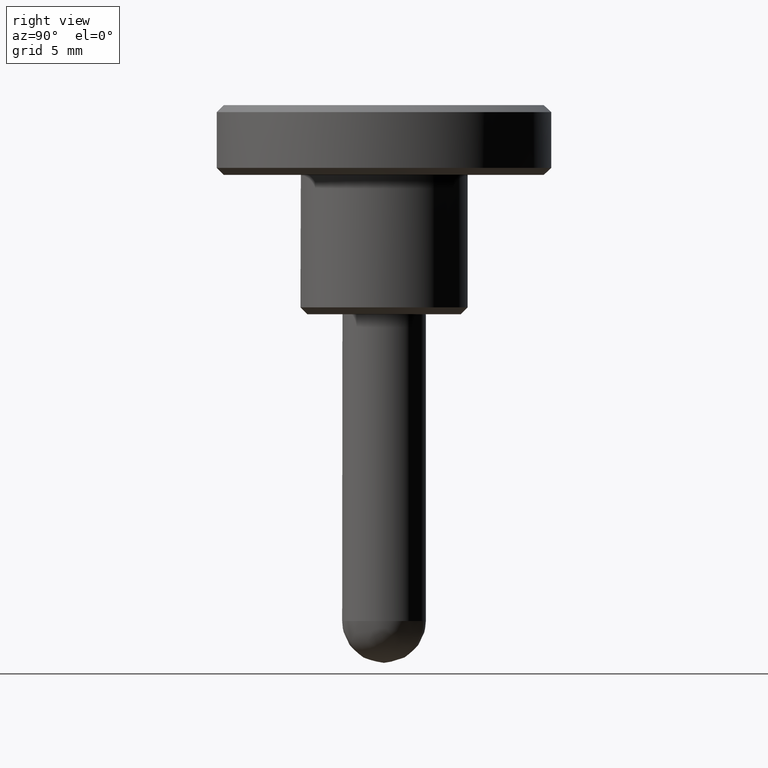
[diagram: clean part render]
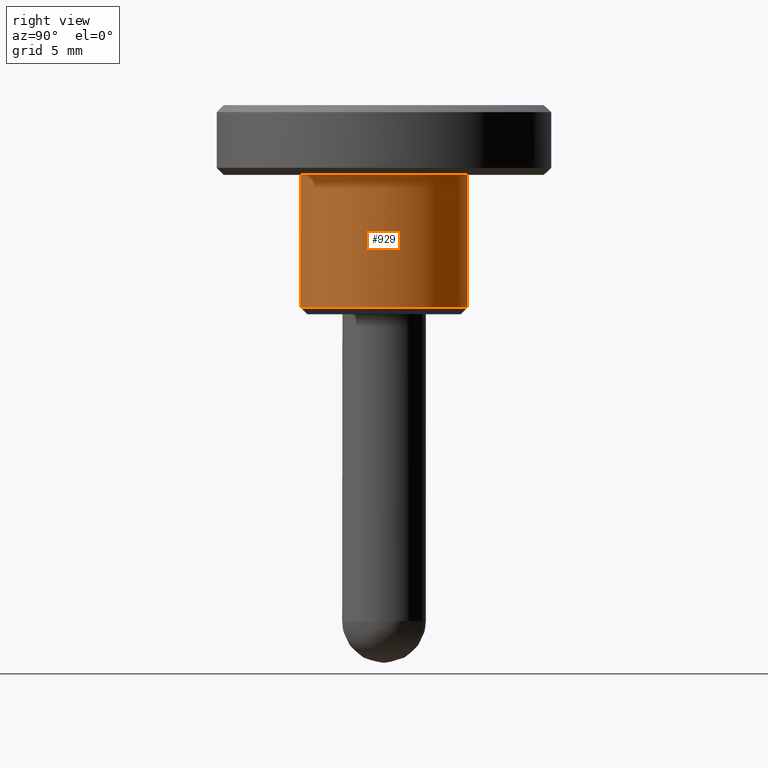
[diagram: same view with one face highlighted and labeled with its STEP entity id]
A machine part, right view. The second image highlights one B-rep face of the part: STEP entity #929.
In plain terms, the highlighted face is a freeform B-spline surface patch.
Its self-contained STEP definition (entity closure, byte-faithful):
#500=CARTESIAN_POINT('',(0.744759686369103,-5.953598324499980,0.499999999999945));
#501=VERTEX_POINT('',#500);
#558=CARTESIAN_POINT('',(-0.052357932302264,5.999771549560601,0.499999999999668));
#559=VERTEX_POINT('',#558);
#565=CARTESIAN_POINT('',(6.0,0.0,0.499999999999945));
#566=VERTEX_POINT('',#565);
#567=CARTESIAN_POINT('',(6.0,0.0,0.499999999999945));
#568=CARTESIAN_POINT('',(6.0,6.0,0.499999999999945));
#569=CARTESIAN_POINT('',(0.0,6.0,0.499999999999945));
#570=CARTESIAN_POINT('',(-0.026179464543647,6.0,0.499999999999945));
#571=CARTESIAN_POINT('',(-0.052357932302264,5.999771549560601,0.499999999999668));
#579=(BOUNDED_CURVE()B_SPLINE_CURVE(2,(#567,#568,#569,#570,#571),.UNSPECIFIED.,.F.,.U.)B_SPLINE_CURVE_WITH_KNOTS((3,2,3),(0.500000000000000,0.750000000000000,0.751539856736231),.UNSPECIFIED.)CURVE()GEOMETRIC_REPRESENTATION_ITEM()RATIONAL_B_SPLINE_CURVE((1.0,0.707106781186548,1.0,0.998195945616055,0.996414115114476))REPRESENTATION_ITEM(''));
#580=EDGE_CURVE('',#566,#559,#579,.T.);
#582=CARTESIAN_POINT('',(0.744759686369103,-5.953598324499981,0.499999999999945));
#583=CARTESIAN_POINT('',(6.000000000000003,-5.296199065360759,0.499999999999945));
#584=CARTESIAN_POINT('',(6.0,0.0,0.499999999999945));
#592=(BOUNDED_CURVE()B_SPLINE_CURVE(2,(#582,#583,#584),.UNSPECIFIED.,.F.,.U.)B_SPLINE_CURVE_WITH_KNOTS((3,3),(0.271473693119241,0.500000000000000),.UNSPECIFIED.)CURVE()GEOMETRIC_REPRESENTATION_ITEM()RATIONAL_B_SPLINE_CURVE((0.954005887971741,0.732264777576575,1.0))REPRESENTATION_ITEM(''));
#593=EDGE_CURVE('',#501,#566,#592,.T.);
#863=CARTESIAN_POINT('',(0.744768012478976,-5.953597282953231,0.262499999999943));
#864=CARTESIAN_POINT('',(6.046396983014668,-5.290387548799326,0.262499999999943));
#865=CARTESIAN_POINT('',(5.999771538385026,0.052359212990243,0.262499999999943));
#866=CARTESIAN_POINT('',(5.947412325394783,6.052130751375269,0.262499999999943));
#867=CARTESIAN_POINT('',(-0.052359212990243,5.999771538385026,0.262499999999943));
#868=CARTESIAN_POINT('',(0.744768012478976,-5.953597282953231,10.243437500000006));
#869=CARTESIAN_POINT('',(6.046396983014668,-5.290387548799326,10.243437500000004));
#870=CARTESIAN_POINT('',(5.999771538385026,0.052359212990243,10.243437500000001));
#871=CARTESIAN_POINT('',(5.947412325394783,6.052130751375269,10.243437500000004));
#872=CARTESIAN_POINT('',(-0.052359212990243,5.999771538385026,10.243437500000001));
#880=(BOUNDED_SURFACE()B_SPLINE_SURFACE(2,1,((#863,#868),(#864,#869),(#865,#870),(#866,#871),(#867,#872)),.UNSPECIFIED.,.F.,.F.,.U.)B_SPLINE_SURFACE_WITH_KNOTS((3,2,3),(2,2),(0.0,9.145835457197935,19.086960954152211),(0.0,9.980937500000064),.UNSPECIFIED.)GEOMETRIC_REPRESENTATION_ITEM()RATIONAL_B_SPLINE_SURFACE(((0.956886118190660,0.956886118190660),(0.730538238691624,0.730538238691624),(1.0,1.0),(0.707106781186548,0.707106781186548),(1.0,1.0)))REPRESENTATION_ITEM('')SURFACE());
#881=ORIENTED_EDGE('',*,*,#593,.T.);
#882=ORIENTED_EDGE('',*,*,#580,.T.);
#883=CARTESIAN_POINT('',(-0.052357672670020,5.999771551826802,10.0));
#884=VERTEX_POINT('',#883);
#885=CARTESIAN_POINT('',(-0.052357932302264,5.999771549560601,0.499999999999668));
#886=CARTESIAN_POINT('',(-0.052357672670020,5.999771551826802,10.0));
#887=QUASI_UNIFORM_CURVE('',1,(#885,#886),.UNSPECIFIED.,.F.,.U.);
#888=EDGE_CURVE('',#559,#884,#887,.T.);
#889=ORIENTED_EDGE('',*,*,#888,.T.);
#890=CARTESIAN_POINT('',(6.0,0.0,10.0));
#891=VERTEX_POINT('',#890);
#892=CARTESIAN_POINT('',(-0.052357672670020,5.999771551826802,10.0));
#893=CARTESIAN_POINT('',(-0.026179334720109,6.000000000000001,10.0));
#894=CARTESIAN_POINT('',(0.0,6.0,10.0));
#895=CARTESIAN_POINT('',(6.0,6.0,10.000000000000002));
#896=CARTESIAN_POINT('',(6.0,0.0,10.0));
#904=(BOUNDED_CURVE()B_SPLINE_CURVE(2,(#892,#893,#894,#895,#896),.UNSPECIFIED.,.F.,.U.)B_SPLINE_CURVE_WITH_KNOTS((3,2,3),(0.248460150886118,0.250000000000000,0.500000000000000),.UNSPECIFIED.)CURVE()GEOMETRIC_REPRESENTATION_ITEM()RATIONAL_B_SPLINE_CURVE((0.996414132754732,0.998195954546192,1.0,0.707106781186548,1.0))REPRESENTATION_ITEM(''));
#905=EDGE_CURVE('',#884,#891,#904,.T.);
#906=ORIENTED_EDGE('',*,*,#905,.T.);
#907=CARTESIAN_POINT('',(0.744768012501258,-5.953597282950446,10.0));
#908=VERTEX_POINT('',#907);
#909=CARTESIAN_POINT('',(6.0,0.0,10.0));
#910=CARTESIAN_POINT('',(6.0,-5.296191600861432,10.0));
#911=CARTESIAN_POINT('',(0.744768012501258,-5.953597282950446,10.0));
#919=(BOUNDED_CURVE()B_SPLINE_CURVE(2,(#909,#910,#911),.UNSPECIFIED.,.F.,.U.)B_SPLINE_CURVE_WITH_KNOTS((3,3),(0.500000000000000,0.728526071028037),.UNSPECIFIED.)CURVE()GEOMETRIC_REPRESENTATION_ITEM()RATIONAL_B_SPLINE_CURVE((1.0,0.732265053895227,0.954005430272270))REPRESENTATION_ITEM(''));
#920=EDGE_CURVE('',#891,#908,#919,.T.);
#921=ORIENTED_EDGE('',*,*,#920,.T.);
#922=CARTESIAN_POINT('',(0.744759686369103,-5.953598324499980,0.499999999999945));
#923=CARTESIAN_POINT('',(0.744768012501258,-5.953597282950446,10.0));
#924=QUASI_UNIFORM_CURVE('',1,(#922,#923),.UNSPECIFIED.,.F.,.U.);
#925=EDGE_CURVE('',#501,#908,#924,.T.);
#926=ORIENTED_EDGE('',*,*,#925,.F.);
#927=EDGE_LOOP('',(#881,#882,#889,#906,#921,#926));
#928=FACE_OUTER_BOUND('',#927,.T.);
#929=ADVANCED_FACE('',(#928),#880,.T.);